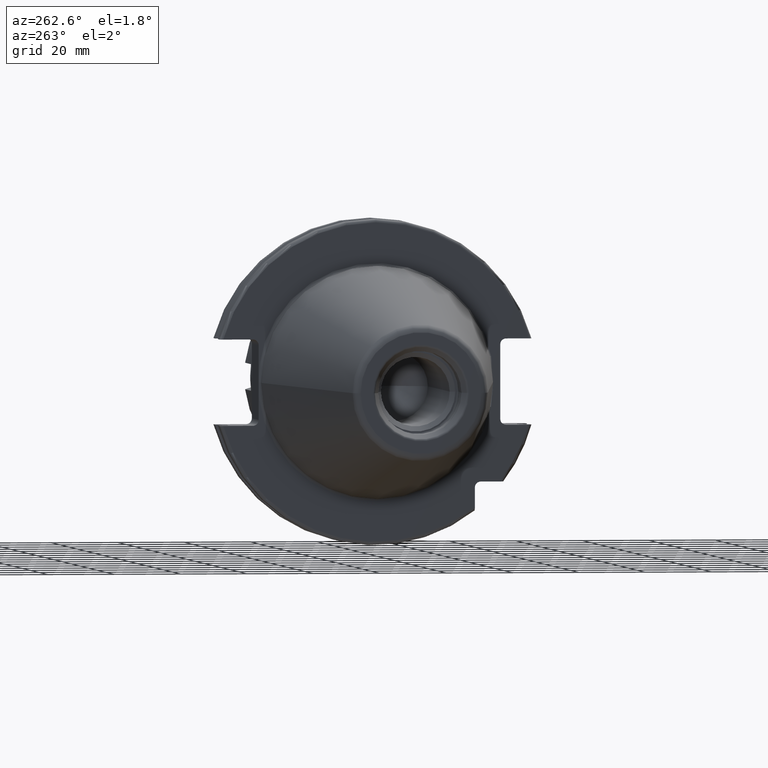
[diagram: clean part render]
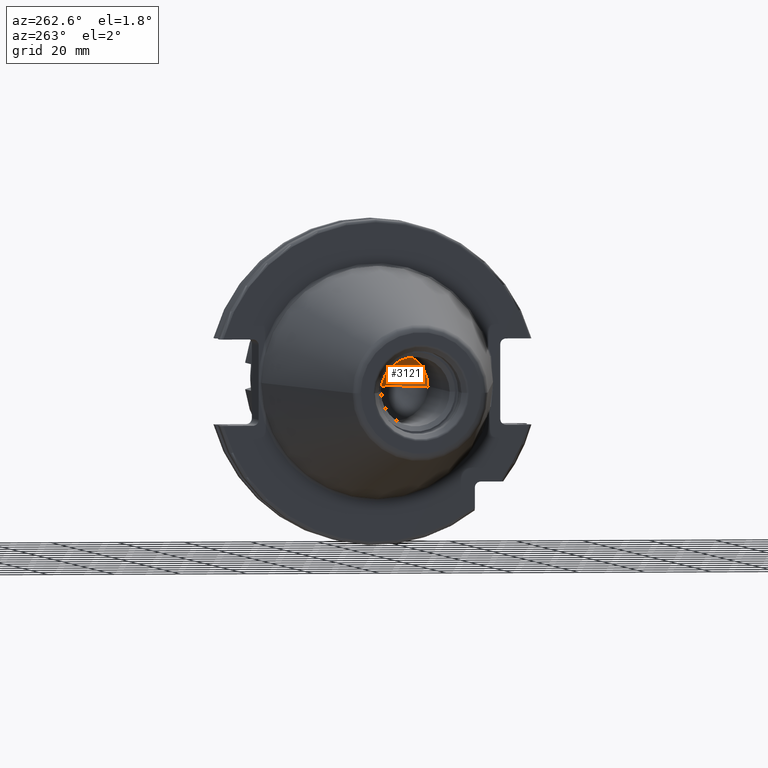
[diagram: same view with one face highlighted and labeled with its STEP entity id]
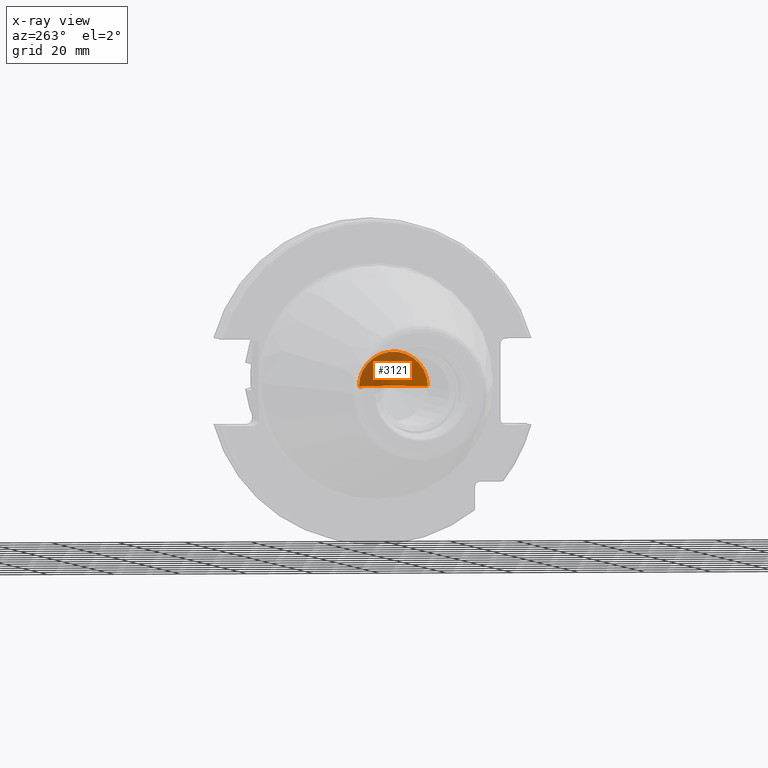
[diagram: x-ray of the same camera — body ghosted, the highlighted face saturated]
A machine part, auxiliary view. The second image highlights one B-rep face of the part: STEP entity #3121.
The next image is the same camera in x-ray: the body ghosted, the highlighted face saturated — about 48% of this face is hidden behind the body in this view.
In plain terms, the highlighted conical surface has half-angle 59 deg.
Its self-contained STEP definition (entity closure, byte-faithful):
#1305=CARTESIAN_POINT('',(-3.76E1,0.E0,0.E0));
#1306=DIRECTION('',(1.E0,0.E0,0.E0));
#1307=DIRECTION('',(0.E0,1.E0,0.E0));
#1308=AXIS2_PLACEMENT_3D('',#1305,#1306,#1307);
#1310=DIRECTION('',(-5.150380749101E-1,8.571673007021E-1,0.E0));
#1311=VECTOR('',#1310,1.210382149611E1);
#1312=CARTESIAN_POINT('',(-3.136607107759E1,0.E0,0.E0));
#1313=LINE('',#1312,#1311);
#1314=DIRECTION('',(-5.150380749101E-1,-8.571673007021E-1,0.E0));
#1315=VECTOR('',#1314,1.210382149611E1);
#1316=CARTESIAN_POINT('',(-3.136607107759E1,0.E0,0.E0));
#1317=LINE('',#1316,#1315);
#1336=CARTESIAN_POINT('',(-3.136607107759E1,0.E0,0.E0));
#1337=CARTESIAN_POINT('',(-3.76E1,1.0375E1,0.E0));
#1338=VERTEX_POINT('',#1336);
#1339=VERTEX_POINT('',#1337);
#1360=CARTESIAN_POINT('',(-3.76E1,-1.0375E1,0.E0));
#1361=VERTEX_POINT('',#1360);
#3109=CARTESIAN_POINT('',(-3.448303553879E1,0.E0,0.E0));
#3110=DIRECTION('',(-1.E0,0.E0,0.E0));
#3111=DIRECTION('',(0.E0,1.E0,0.E0));
#3112=AXIS2_PLACEMENT_3D('',#3109,#3110,#3111);
#3113=CONICAL_SURFACE('',#3112,5.1875E0,5.9E1);
#3115=ORIENTED_EDGE('',*,*,#3114,.T.);
#3116=ORIENTED_EDGE('',*,*,#3104,.T.);
#3118=ORIENTED_EDGE('',*,*,#3117,.F.);
#3119=EDGE_LOOP('',(#3115,#3116,#3118));
#3120=FACE_OUTER_BOUND('',#3119,.F.);
#3121=ADVANCED_FACE('',(#3120),#3113,.F.);
#1309=CIRCLE('',#1308,1.0375E1);
#3104=EDGE_CURVE('',#1339,#1361,#1309,.T.);
#3114=EDGE_CURVE('',#1338,#1339,#1313,.T.);
#3117=EDGE_CURVE('',#1338,#1361,#1317,.T.);